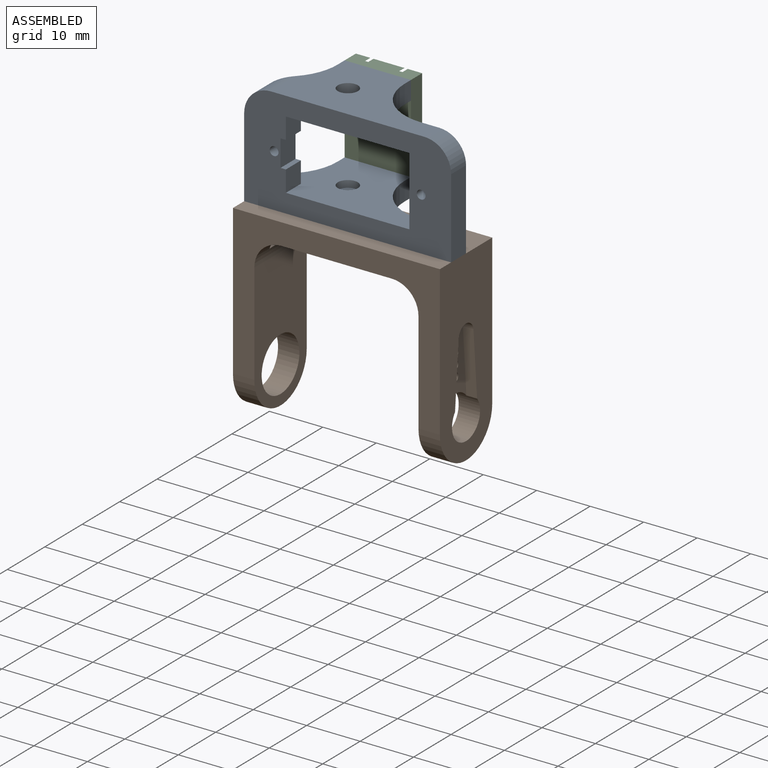
[diagram: assembled view]
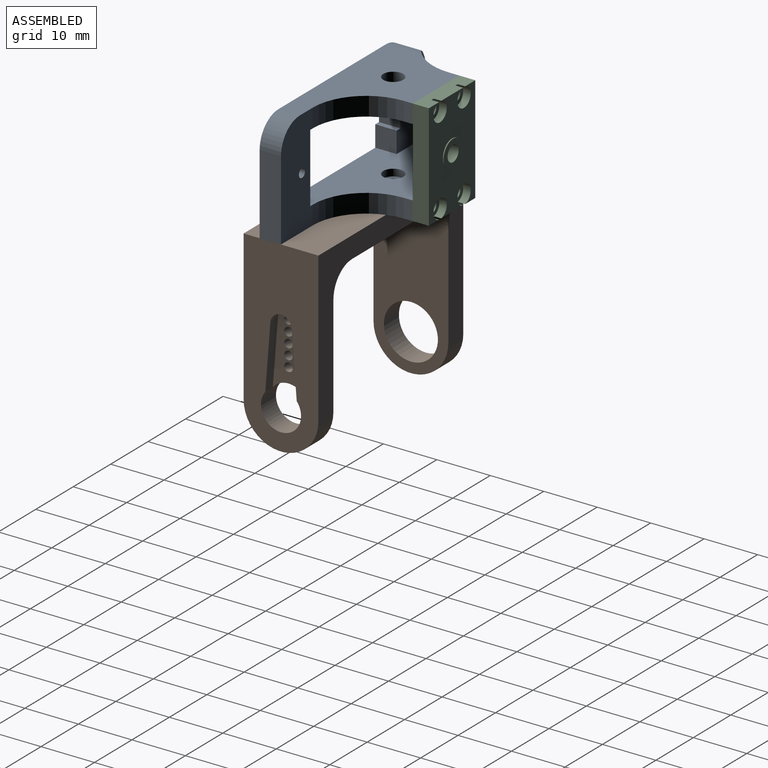
[diagram: assembled view, second angle]
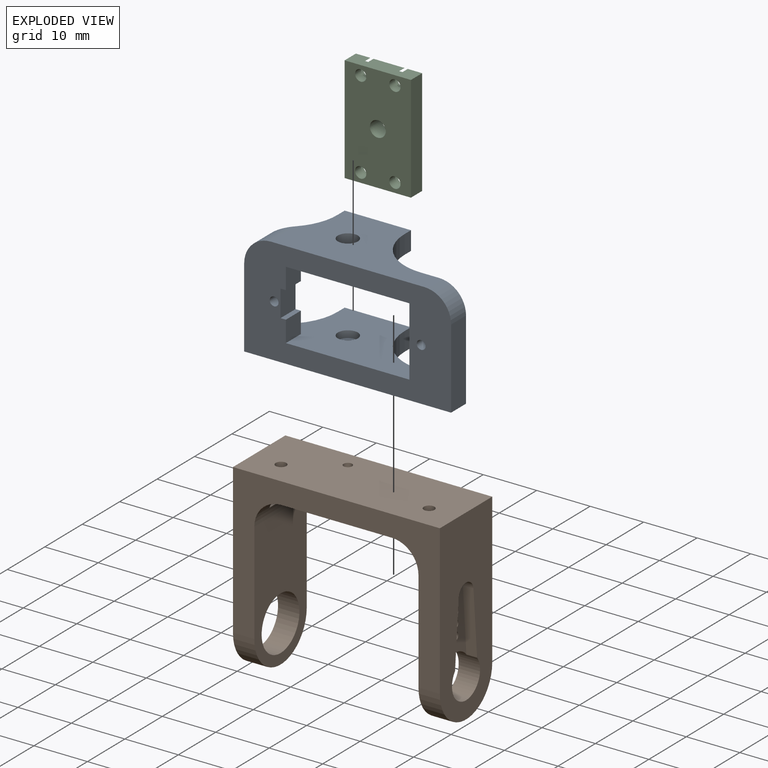
[diagram: exploded view]
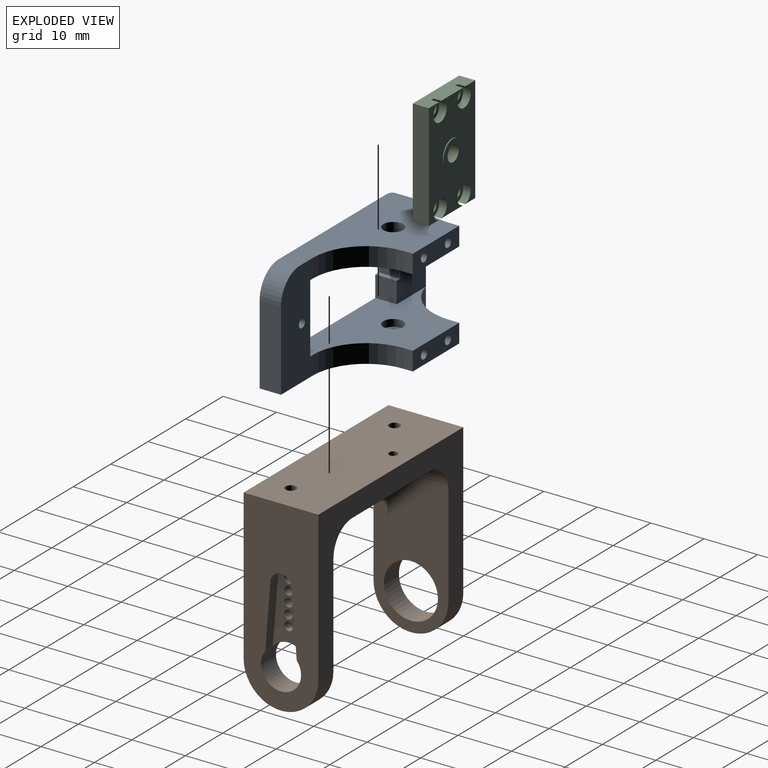
[diagram: exploded view, second angle]
ASSEMBLY  parts=3 mates=2
PART A: 45 faces, bbox 38.7x15.7x19.9 mm
  f0: plane 19.9x8.5mm, normal (0,1,0), area 152.6mm2, adj f2,f3,f5,f6,f7,f12,f13,f29
  f1: plane 12.9x7.8mm, normal (0,1,0), area 93.4mm2, adj f4,f5,f7,f8,f9,f10,f11,f14
  f2: plane 14.9x4mm, normal (1,0,0), area 59.6mm2, adj f0,f13,f16,f35
  f3: plane 28.7x15.7mm, normal (0,0,1), area 284.2mm2, adj f0,f16,f17,f18,f23,f29,f30,f35
  f4: plane 14.9x4mm, normal (-1,0,0), area 59.6mm2, adj f1,f13,f16,f31,f36
  f5: plane 30.67x15.7mm, normal (0,0,-1), area 267.3mm2, adj f0,f1,f6,f14,f16,f17,f18,f23
  f6: plane 12.9x4mm, normal (-1,0,0), area 51.6mm2, adj f0,f5,f7,f16
  f7: plane 30.9x15.7mm, normal (0,0,1), area 267.3mm2, adj f0,f1,f6,f8,f16,f19,f20,f26
  f8: plane 4x3.95mm, normal (1,0,0), area 15.8mm2, adj f1,f7,f9,f16
  f9: plane 4x1mm, normal (0,0,1), area 4mm2, adj f1,f8,f10,f16
  f10: plane 5x4mm, normal (1,0,0), area 20mm2, adj f1,f9,f11,f16
  f11: plane 4x1mm, normal (0,0,-1), area 4mm2, adj f1,f10,f14,f16
  f12: cylinder r=0.82mm len=4mm, axis (0,1,0), area 20.7mm2, adj f0,f16
  f13: plane 38.7x15.7mm, normal (0,0,-1), area 333.5mm2, adj f0,f2,f4,f16,f19,f20,f26,f31
  f14: plane 4x3.95mm, normal (1,0,0), area 15.8mm2, adj f1,f5,f11,f16
  f15: cylinder r=0.82mm len=4mm, axis (0,1,0), area 20.7mm2, adj f1,f16
  f16: plane 38.7x19.9mm, normal (0,-1,0), area 452.1mm2, adj f2,f3,f4,f5,f6,f7,f8,f9
  f17: plane 3.5x1.95mm, normal (-1,0,0), area 6.8mm2, adj f3,f5,f23,f30
  f18: plane 3.5x1.7mm, normal (1,0,0), area 6mm2, adj f3,f5,f23,f29
  f19: plane 3.5x1.95mm, normal (-1,0,0), area 6.8mm2, adj f7,f13,f26,f31
  f20: plane 3.5x1.7mm, normal (1,0,0), area 6mm2, adj f7,f13,f26,f32
  f21: cylinder r=0.82mm len=12mm, axis (0,-1,0), area 62.2mm2, adj f23,f27
  f22: cylinder r=0.82mm len=12mm, axis (0,-1,0), area 62.2mm2, adj f23,f28
  f23: plane 12.4x3.5mm, normal (0,1,0), area 39.1mm2, adj f3,f5,f17,f18,f21,f22
  f24: cylinder r=0.82mm len=12mm, axis (0,-1,0), area 62.2mm2, adj f26,f33
  f25: cylinder r=0.82mm len=12mm, axis (0,-1,0), area 62.2mm2, adj f26,f34
  f26: plane 12.4x3.5mm, normal (0,1,0), area 39.1mm2, adj f7,f13,f19,f20,f24,f25
  f27: plane 1.65x1.65mm, normal (0,1,0), area 2.1mm2, adj f21
  f28: plane 1.65x1.65mm, normal (0,1,0), area 2.1mm2, adj f22
  f29: cylinder r=10mm len=10mm, axis (0,0,1), area 55mm2, adj f0,f3,f5,f18
  f30: cylinder r=10mm len=9.7mm, axis (0,0,-1), area 41.6mm2, adj f3,f5,f17,f36
  f31: cylinder r=10mm len=9.76mm, axis (0,0,-1), area 47.2mm2, adj f4,f7,f13,f19
  f32: cylinder r=10mm len=10mm, axis (0,0,1), area 55mm2, adj f0,f7,f13,f20
  f33: plane 1.65x1.65mm, normal (0,1,0), area 2.1mm2, adj f24
  f34: plane 1.65x1.65mm, normal (0,1,0), area 2.1mm2, adj f25
  f35: cylinder r=5mm len=5mm, axis (0,1,0), area 31.4mm2, adj f0,f2,f3,f16
  f36: cylinder r=5mm len=6.82mm, axis (0,1,0), area 37.4mm2, adj f1,f3,f4,f5,f16,f30
  f37: cylinder r=0.8mm len=8mm, axis (0,0,-1), area 40.2mm2, adj f13,f38
  f38: plane 1.6x1.6mm, normal (0,0,-1), area 2mm2, adj f37
  f39: cylinder r=0.8mm len=8mm, axis (0,0,-1), area 40.2mm2, adj f13,f40
  f40: plane 1.6x1.6mm, normal (0,0,-1), area 2mm2, adj f39
  f41: cylinder r=1mm len=2.2mm, axis (0,0,-1), area 13.8mm2, adj f13,f42
  f42: plane 3.75x3.75mm, normal (0,0,1), area 7.9mm2, adj f41,f43
  f43: cylinder r=1.88mm len=3.75mm, axis (0,0,-1), area 15.3mm2, adj f7,f42
  f44: cylinder r=1.88mm len=3.75mm, axis (0,0,-1), area 41.2mm2, adj f3,f5
PART B: 32 faces, bbox 38.7x14x35 mm
  f0: cylinder r=1mm len=2mm, axis (0,0,-1), area 10.7mm2, adj f7,f27
  f1: cylinder r=1mm len=2mm, axis (0,0,-1), area 10.7mm2, adj f7,f29
  f2: cylinder r=0.8mm len=2mm, axis (1,0,0), area 10.1mm2, adj f11,f22
  f3: cylinder r=0.8mm len=2mm, axis (1,0,0), area 10.1mm2, adj f11,f22
  f4: cylinder r=0.8mm len=2mm, axis (1,0,0), area 10.1mm2, adj f11,f22
  f5: cylinder r=0.8mm len=2mm, axis (1,0,0), area 10.1mm2, adj f11,f22
  f6: cylinder r=0.8mm len=2mm, axis (1,0,0), area 10.1mm2, adj f11,f22
  f7: plane 38.7x14mm, normal (0,0,1), area 533.5mm2, adj f0,f1,f8,f12,f13,f14,f23
  f8: plane 35x14mm, normal (-1,0,0), area 388.9mm2, adj f7,f13,f14,f16,f18
  f9: plane 26x14mm, normal (1,0,0), area 262.9mm2, adj f13,f14,f16,f18,f30
  f10: plane 20.7x14mm, normal (0,0,-1), area 287.8mm2, adj f13,f14,f23,f30,f31
  f11: plane 26x14mm, normal (-1,0,0), area 288.7mm2, adj f2,f3,f4,f5,f6,f13,f14,f15
  f12: plane 35x14mm, normal (1,0,0), area 365.9mm2, adj f7,f13,f14,f15,f17,f19,f20,f21
  f13: plane 38.7x28mm, normal (0,-1,0), area 357.5mm2, adj f7,f8,f9,f10,f11,f12,f15,f16
  f14: plane 38.7x28mm, normal (0,1,0), area 357.5mm2, adj f7,f8,f9,f10,f11,f12,f15,f16
  f15: cylinder r=7mm len=14mm, axis (-1,0,0), area 88mm2, adj f11,f12,f13,f14
  f16: cylinder r=7mm len=14mm, axis (-1,0,0), area 88mm2, adj f8,f9,f13,f14
  f17: cylinder r=3.75mm len=7.5mm, axis (1,0,0), area 80.7mm2, adj f11,f12,f19,f21,f22
  f18: cylinder r=5.05mm len=10.1mm, axis (1,0,0), area 126.9mm2, adj f8,f9
  f19: plane 11.82x2mm, normal (0,-1,-0.08), area 23.7mm2, adj f12,f17,f20,f22
  f20: cylinder r=2mm len=4mm, axis (1,0,0), area 12.6mm2, adj f12,f19,f21,f22
  f21: plane 11.82x2mm, normal (0,1,-0.08), area 23.7mm2, adj f12,f17,f20,f22
  f22: plane 13.82x5.88mm, normal (1,0,0), area 48.8mm2, adj f2,f3,f4,f5,f6,f17,f19,f20
  f23: cylinder r=0.8mm len=4mm, axis (0,0,-1), area 20.1mm2, adj f7,f10
  f24: cylinder r=1.88mm len=5.3mm, axis (0,0,-1), area 46.4mm2, adj f28,f29,f30
  f25: cylinder r=1.88mm len=5.3mm, axis (0,0,-1), area 46.4mm2, adj f26,f27,f31
  f26: plane 3.06x0.79mm, normal (0,0,1), area 1.7mm2, adj f25,f31
  f27: plane 3.75x3.75mm, normal (0,0,-1), area 7.9mm2, adj f0,f25
  f28: plane 3.06x0.79mm, normal (0,0,1), area 1.7mm2, adj f24,f30
  f29: plane 3.75x3.75mm, normal (0,0,-1), area 7.9mm2, adj f1,f24
  f30: cylinder r=5mm len=14mm, axis (0,-1,0), area 96.6mm2, adj f9,f10,f13,f14,f24,f28
  f31: cylinder r=5mm len=14mm, axis (0,1,0), area 96.6mm2, adj f10,f11,f13,f14,f25,f26
PART C: 21 faces, bbox 12.4x3.2x19.9 mm
  f0: cylinder r=1.05mm len=2.1mm, axis (0,-1,0), area 10.6mm2, adj f10,f15
  f1: cylinder r=1.05mm len=2.1mm, axis (0,-1,0), area 10.6mm2, adj f10,f19
  f2: cylinder r=1.05mm len=2.1mm, axis (0,-1,0), area 10.6mm2, adj f10,f17
  f3: cylinder r=1.05mm len=2.1mm, axis (0,-1,0), area 10.6mm2, adj f10,f13
  f4: plane 19.9x12.4mm, normal (0,1,0), area 187.6mm2, adj f5,f6,f7,f9,f11,f14,f16,f18
  f5: plane 19.9x3mm, normal (-1,0,0), area 59.7mm2, adj f4,f6,f9,f10
  f6: plane 12.4x3mm, normal (0,0,-1), area 35.5mm2, adj f4,f5,f7,f10,f17,f18,f19,f20
  f7: plane 19.9x3mm, normal (1,0,0), area 59.7mm2, adj f4,f6,f9,f10
  f8: cylinder r=1.47mm len=3.2mm, axis (0,-1,0), area 29.7mm2, adj f10,f12
  f9: plane 12.4x3mm, normal (0,0,1), area 35.5mm2, adj f4,f5,f7,f10,f13,f14,f15,f16
  f10: plane 19.9x12.4mm, normal (0,-1,0), area 226.1mm2, adj f0,f1,f2,f3,f5,f6,f7,f8
  f11: cylinder r=2.5mm len=5mm, axis (0,-1,0), area 3.1mm2, adj f4,f12
  f12: plane 5x5mm, normal (0,1,0), area 12.8mm2, adj f8,f11
  f13: plane 3.55x3.53mm, normal (0,1,0), area 6.4mm2, adj f3,f9,f14
  f14: cylinder r=1.78mm len=3.55mm, axis (0,1,0), area 14.8mm2, adj f4,f9,f13
  f15: plane 3.55x3.53mm, normal (0,1,0), area 6.4mm2, adj f0,f9,f16
  f16: cylinder r=1.78mm len=3.55mm, axis (0,1,0), area 14.8mm2, adj f4,f9,f15
  f17: plane 3.55x3.53mm, normal (0,1,0), area 6.4mm2, adj f2,f6,f18
  f18: cylinder r=1.78mm len=3.55mm, axis (0,1,0), area 14.8mm2, adj f4,f6,f17
  f19: plane 3.55x3.53mm, normal (0,1,0), area 6.4mm2, adj f1,f6,f20
  f20: cylinder r=1.78mm len=3.55mm, axis (0,1,0), area 14.8mm2, adj f4,f6,f19
PLACE A t=(-14.1,-6.07,11.22)mm
PLACE B t=(-14.1,-6.07,11.22)mm
PLACE C t=(-14.1,-6.07,11.22)mm
MATE fastened A.f39 <-> B.f1  axis (0,0,-1) through (16.86,-8.07,-22.72)mm
MATE fastened A.f21 <-> C.f0  axis (0,1,0) through (22.16,5.63,-4.57)mm
